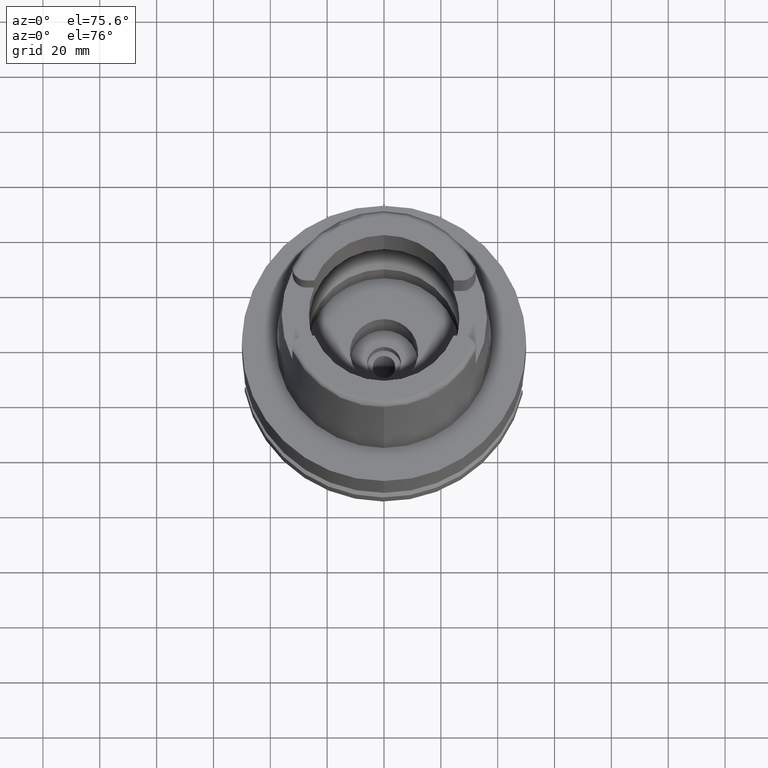
[diagram: clean part render]
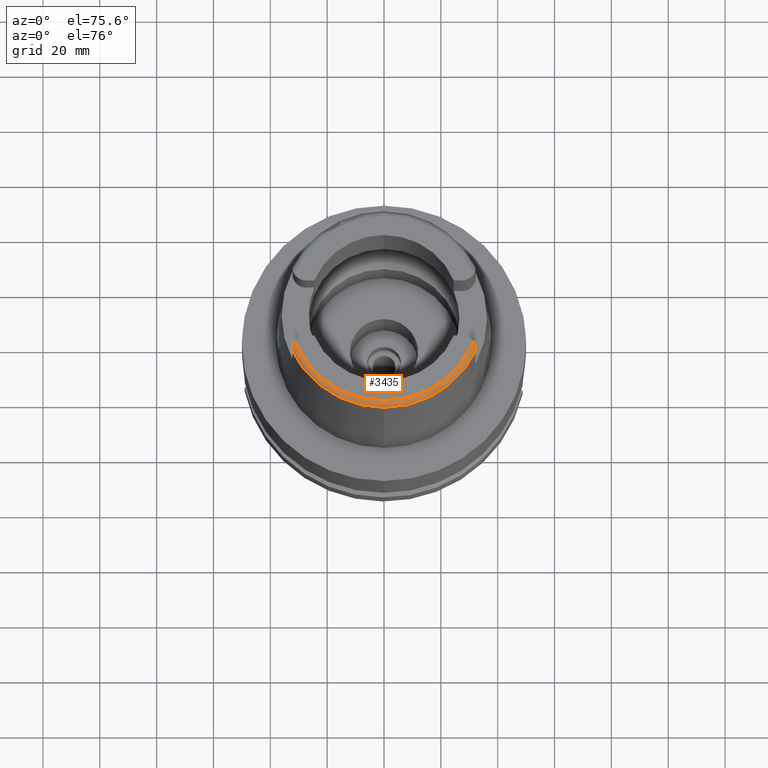
[diagram: same view with one face highlighted and labeled with its STEP entity id]
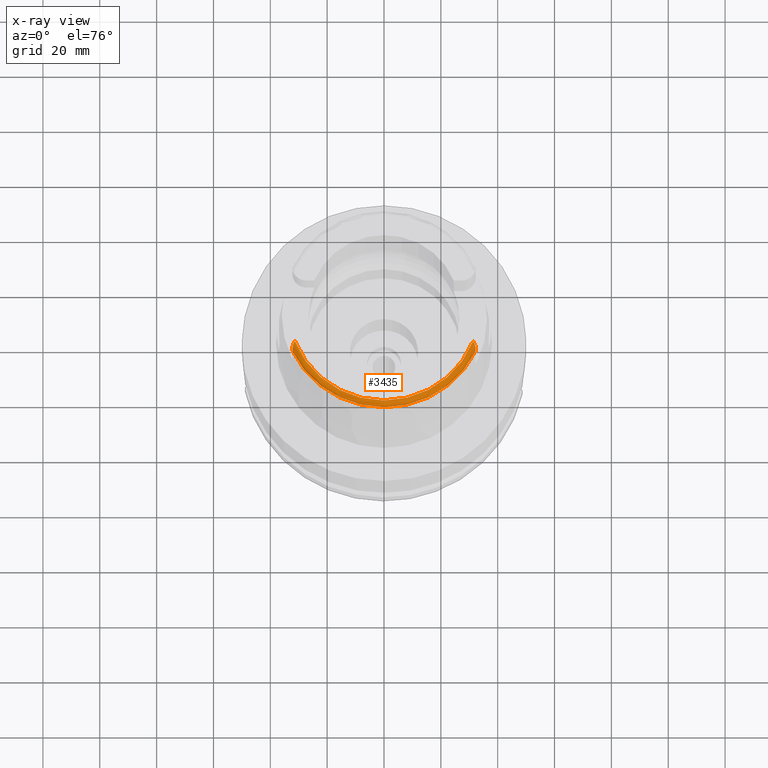
[diagram: x-ray of the same camera — body ghosted, the highlighted face saturated]
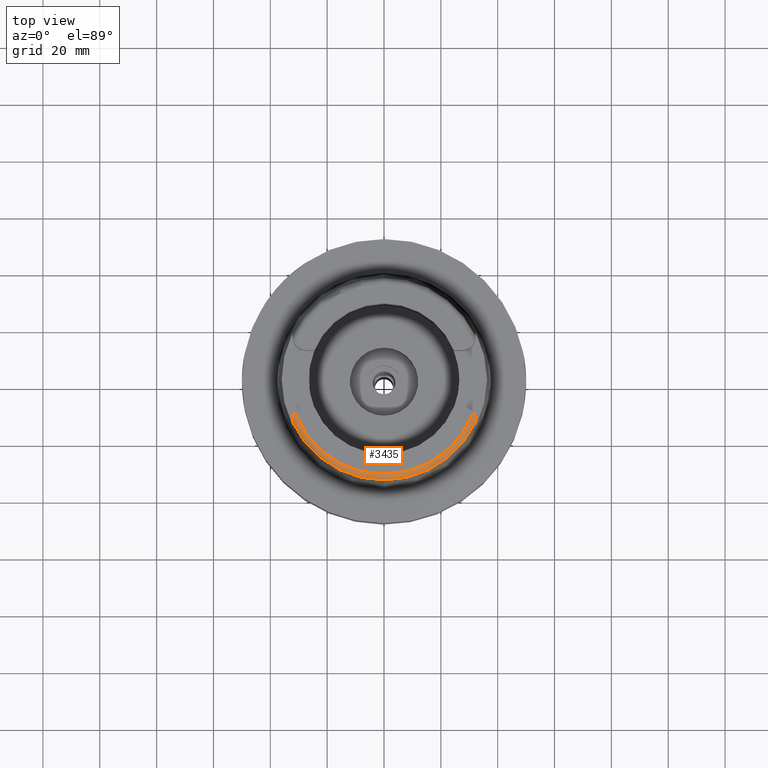
[diagram: same view with one face highlighted and labeled with its STEP entity id]
A machine part, auxiliary view. The second image highlights one B-rep face of the part: STEP entity #3435.
The next image is the same camera in x-ray: the body ghosted, the highlighted face saturated — about 0% of this face is hidden behind the body in this view.
A second angle (top view) of the same face is appended — the face is thin or edge-on in the first view.
In plain terms, the highlighted toroidal blend (fillet) surface has major radius 33.5974 mm and minor (blend) radius 2 mm.
Its self-contained STEP definition (entity closure, byte-faithful):
#33 = DIRECTION ( 'NONE',  ( 0.0000000000000000000, 0.0000000000000000000, -1.000000000000000000 ) ) ;
#172 = VERTEX_POINT ( 'NONE', #4469 ) ;
#177 = CARTESIAN_POINT ( 'NONE',  ( 32.14610317425776032, -13.87985422241613165, 49.41537686676068120 ) ) ;
#258 = CARTESIAN_POINT ( 'NONE',  ( -32.03371708158881148, -13.45243536510992577, 49.63932531624906375 ) ) ;
#266 = CARTESIAN_POINT ( 'NONE',  ( 32.21870237745215348, -14.33756778917065766, 49.10484835802201076 ) ) ;
#285 = CARTESIAN_POINT ( 'NONE',  ( -32.24268959277559787, -14.61955383698909650, 48.86302905688015841 ) ) ;
#349 = CARTESIAN_POINT ( 'NONE',  ( 31.35385269249000473, -12.07161079256999869, 50.00000000000000000 ) ) ;
#673 = CARTESIAN_POINT ( 'NONE',  ( 31.96671511648073505, -13.25139699175301189, 49.72800424400512753 ) ) ;
#736 = CARTESIAN_POINT ( 'NONE',  ( 32.11175532502635832, -13.73655971093185890, 49.49466299999382812 ) ) ;
#746 = CIRCLE ( 'NONE', #837, 35.59494289391000166 ) ;
#760 = CARTESIAN_POINT ( 'NONE',  ( -32.23698933338838657, -14.53315827437096175, 48.94271495172433362 ) ) ;
#787 = CARTESIAN_POINT ( 'NONE',  ( -32.15038882765753669, -13.90855415371579973, 49.39613752943051139 ) ) ;
#800 = EDGE_CURVE ( 'NONE', #3783, #1048, #1137, .T. ) ;
#820 = VERTEX_POINT ( 'NONE', #3855 ) ;
#837 = AXIS2_PLACEMENT_3D ( 'NONE', #898, #5739, #3323 ) ;
#856 = CARTESIAN_POINT ( 'NONE',  ( -32.24470985306119530, -14.65975393674544414, 48.82325495386183434 ) ) ;
#898 = CARTESIAN_POINT ( 'NONE',  ( 0.0000000000000000000, 0.0000000000000000000, 48.09987853799000135 ) ) ;
#987 = CARTESIAN_POINT ( 'NONE',  ( 32.25000000000000000, -15.04642711843376723, 48.25215134090561975 ) ) ;
#1048 = VERTEX_POINT ( 'NONE', #5459 ) ;
#1137 = CIRCLE ( 'NONE', #2623, 35.59494289391000166 ) ;
#1177 = ORIENTED_EDGE ( 'NONE', *, *, #3358, .F. ) ;
#1200 = CARTESIAN_POINT ( 'NONE',  ( -32.23855298297688421, -14.55525666458529166, 48.92278200394598997 ) ) ;
#1230 = CARTESIAN_POINT ( 'NONE',  ( -32.12310698791974062, -13.78427229960854206, 49.46815977806798514 ) ) ;
#1320 = ORIENTED_EDGE ( 'NONE', *, *, #4019, .F. ) ;
#1395 = DIRECTION ( 'NONE',  ( 0.0000000000000000000, -1.000000000000000000, 0.0000000000000000000 ) ) ;
#1405 = VERTEX_POINT ( 'NONE', #2618 ) ;
#1471 = DIRECTION ( 'NONE',  ( 0.0000000000000000000, 0.0000000000000000000, 1.000000000000000000 ) ) ;
#1699 = CARTESIAN_POINT ( 'NONE',  ( -32.01663586166080222, -13.39884982182910278, 49.66381532510670382 ) ) ;
#1785 = CARTESIAN_POINT ( 'NONE',  ( -32.23343763414511187, -14.48763751759479490, 48.98261144479383944 ) ) ;
#1922 = CARTESIAN_POINT ( 'NONE',  ( 0.0000000000000000000, 0.0000000000000000000, 48.09987853799000135 ) ) ;
#1961 = DIRECTION ( 'NONE',  ( 0.0000000000000000000, 0.0000000000000000000, -1.000000000000000000 ) ) ;
#1965 = CARTESIAN_POINT ( 'NONE',  ( 32.25000000000000000, -14.98829434827043272, 48.40080381564561662 ) ) ;
#2003 = CARTESIAN_POINT ( 'NONE',  ( 0.0000000000000000000, 0.0000000000000000000, 48.00000000000000000 ) ) ;
#2020 = CARTESIAN_POINT ( 'NONE',  ( 32.25000552016999222, -15.06439831049000055, 48.10004151400000438 ) ) ;
#2113 = CARTESIAN_POINT ( 'NONE',  ( 31.84889022511243439, -12.95082494414624108, 49.84110235372610731 ) ) ;
#2137 = CARTESIAN_POINT ( 'NONE',  ( -32.14079829604171579, -13.86254764680484008, 49.42348671741006427 ) ) ;
#2180 = CARTESIAN_POINT ( 'NONE',  ( 32.24706215165778644, -14.63331221551902139, 48.86215700780236659 ) ) ;
#2198 = CARTESIAN_POINT ( 'NONE',  ( -31.68264163235910047, -12.58363611097901114, 49.95463711956471542 ) ) ;
#2354 = CARTESIAN_POINT ( 'NONE',  ( -32.24999491821000674, -15.06448480891999964, 48.09973261705999903 ) ) ;
#2425 = VERTEX_POINT ( 'NONE', #349 ) ;
#2473 = DIRECTION ( 'NONE',  ( -0.0004184165975219878483, -0.9999999124637716230, 0.0000000000000000000 ) ) ;
#2565 = FACE_OUTER_BOUND ( 'NONE', #5345, .T. ) ;
#2618 = CARTESIAN_POINT ( 'NONE',  ( 32.25000000000000000, -14.89000000000000057, 48.54599893821999501 ) ) ;
#2623 = AXIS2_PLACEMENT_3D ( 'NONE', #1922, #1961, #1395 ) ;
#2641 = CARTESIAN_POINT ( 'NONE',  ( 32.20542540692940037, -14.22966627373202542, 49.18586996303810821 ) ) ;
#2660 = CARTESIAN_POINT ( 'NONE',  ( -31.94108013937859525, -13.17363191879881867, 49.76261469505764978 ) ) ;
#2688 = CARTESIAN_POINT ( 'NONE',  ( -32.11978351870300941, -13.77005375147366451, 49.47613186544180763 ) ) ;
#2755 = CARTESIAN_POINT ( 'NONE',  ( -32.16844265705450567, -13.99940399838899907, 49.34079756337163047 ) ) ;
#2782 = B_SPLINE_CURVE_WITH_KNOTS ( 'NONE', 3,
 ( #2354, #5626, #3250, #5213 ),
 .UNSPECIFIED., .F., .F.,
 ( 4, 4 ),
 ( 0.0000000000000000000, 1.000000000000000000 ),
 .UNSPECIFIED. ) ;
#2861 = B_SPLINE_CURVE_WITH_KNOTS ( 'NONE', 3,
 ( #5203, #1965, #987, #2020 ),
 .UNSPECIFIED., .F., .F.,
 ( 4, 4 ),
 ( 0.0000000000000000000, 1.000000000000000000 ),
 .UNSPECIFIED. ) ;
#2987 = CARTESIAN_POINT ( 'NONE',  ( 32.25000000000000000, -14.78330813591049164, 48.70359841934597966 ) ) ;
#3074 = CARTESIAN_POINT ( 'NONE',  ( 31.89599084158538389, -13.06210101560527548, 49.80307078958208677 ) ) ;
#3090 = CARTESIAN_POINT ( 'NONE',  ( -32.09883640354727419, -13.68265768955951955, 49.52449476721399435 ) ) ;
#3102 = CARTESIAN_POINT ( 'NONE',  ( 32.08471361768027919, -13.62976688719491136, 49.55187484112376239 ) ) ;
#3123 = CARTESIAN_POINT ( 'NONE',  ( -32.00500484644039290, -13.36308030394345359, 49.67990980628329822 ) ) ;
#3136 = AXIS2_PLACEMENT_3D ( 'NONE', #5281, #33, #3755 ) ;
#3187 = CARTESIAN_POINT ( 'NONE',  ( -32.13030730052887662, -13.81569362351521590, 49.45035471281480710 ) ) ;
#3215 = CARTESIAN_POINT ( 'NONE',  ( -32.21984169462297842, -14.33883225201004308, 49.10660589714066759 ) ) ;
#3239 = AXIS2_PLACEMENT_3D ( 'NONE', #2003, #1471, #2473 ) ;
#3250 = CARTESIAN_POINT ( 'NONE',  ( -32.25000000000000000, -14.98833473157426255, 48.40074416356956277 ) ) ;
#3323 = DIRECTION ( 'NONE',  ( 0.9060280460804950309, -0.4232176505245974218, 0.0000000000000000000 ) ) ;
#3358 = EDGE_CURVE ( 'NONE', #1048, #5017, #2782, .T. ) ;
#3435 = ADVANCED_FACE ( 'NONE', ( #2565 ), #3547, .T. ) ;
#3453 = CARTESIAN_POINT ( 'NONE',  ( 31.68320087010997810, -12.58478439452329845, 49.95433150338072181 ) ) ;
#3547 = TOROIDAL_SURFACE ( 'NONE', #3239, 33.59743838135999994, 2.000000000000000000 ) ;
#3576 = CARTESIAN_POINT ( 'NONE',  ( 31.94621796354172361, -13.19427246604458936, 49.75159069773069120 ) ) ;
#3579 = CARTESIAN_POINT ( 'NONE',  ( 1.065814103639999922E-14, -35.59494289391000166, 48.09987853799000135 ) ) ;
#3655 = CARTESIAN_POINT ( 'NONE',  ( -32.23156497669928910, -14.46546157516217690, 49.00154081838045528 ) ) ;
#3679 = CARTESIAN_POINT ( 'NONE',  ( -31.99949780952958278, -13.34644538154071469, 49.68728616353084249 ) ) ;
#3755 = DIRECTION ( 'NONE',  ( 0.9332215253017949186, -0.3593015233941980191, 0.0000000000000000000 ) ) ;
#3783 = VERTEX_POINT ( 'NONE', #3579 ) ;
#3823 = ORIENTED_EDGE ( 'NONE', *, *, #5473, .F. ) ;
#3855 = CARTESIAN_POINT ( 'NONE',  ( -31.35385269249000473, -12.07161079256999869, 50.00000000000000000 ) ) ;
#3983 = CARTESIAN_POINT ( 'NONE',  ( 32.16982095416102538, -14.00136223075325148, 49.34145702481995954 ) ) ;
#4017 = CARTESIAN_POINT ( 'NONE',  ( 32.01739599369619782, -13.39942740398753074, 49.66419375882557574 ) ) ;
#4019 = EDGE_CURVE ( 'NONE', #172, #3783, #746, .T. ) ;
#4103 = CARTESIAN_POINT ( 'NONE',  ( -32.20663923995435596, -14.23058043373984916, 49.18723614628340357 ) ) ;
#4383 = EDGE_CURVE ( 'NONE', #2425, #820, #4540, .T. ) ;
#4469 = CARTESIAN_POINT ( 'NONE',  ( 32.25000552016999222, -15.06439831049000055, 48.10004151400000438 ) ) ;
#4490 = CARTESIAN_POINT ( 'NONE',  ( 31.98719758479897379, -13.31004985060777202, 49.70316487290664043 ) ) ;
#4509 = ORIENTED_EDGE ( 'NONE', *, *, #4383, .T. ) ;
#4536 = ORIENTED_EDGE ( 'NONE', *, *, #4814, .F. ) ;
#4540 = CIRCLE ( 'NONE', #3136, 33.59743838135999994 ) ;
#4543 = CARTESIAN_POINT ( 'NONE',  ( -32.17897606492392271, -14.05841865554414660, 49.30304879919935956 ) ) ;
#4556 = CARTESIAN_POINT ( 'NONE',  ( 32.19751138235609744, -14.17381327682231884, 49.22541234330859083 ) ) ;
#4576 = CARTESIAN_POINT ( 'NONE',  ( -31.88197110250233379, -13.02386366263928252, 49.81854847825885457 ) ) ;
#4666 = CARTESIAN_POINT ( 'NONE',  ( -32.24915796434953563, -14.77229204092531845, 48.70411622988373779 ) ) ;
#4814 = EDGE_CURVE ( 'NONE', #5017, #820, #5688, .T. ) ;
#4838 = CARTESIAN_POINT ( 'NONE',  ( -32.25000000000000000, -14.89000000000000057, 48.54599893821999501 ) ) ;
#4894 = CARTESIAN_POINT ( 'NONE',  ( 32.25000000000000000, -14.89000000000000057, 48.54599893821999501 ) ) ;
#4924 = CARTESIAN_POINT ( 'NONE',  ( 31.98014945996594705, -13.28958391738456157, 49.71194137325075957 ) ) ;
#4959 = CARTESIAN_POINT ( 'NONE',  ( 31.35385269249000473, -12.07161079256999869, 50.00000000000000000 ) ) ;
#4984 = CARTESIAN_POINT ( 'NONE',  ( 31.52591860102923960, -12.31482958975441377, 50.00000000000000000 ) ) ;
#5003 = CARTESIAN_POINT ( 'NONE',  ( -32.07104929441193519, -13.57694912885029837, 49.57974395259868317 ) ) ;
#5016 = CARTESIAN_POINT ( 'NONE',  ( 32.10708762006205319, -13.71751219968218471, 49.50506756307361655 ) ) ;
#5017 = VERTEX_POINT ( 'NONE', #4838 ) ;
#5065 = CARTESIAN_POINT ( 'NONE',  ( -32.25000000000000000, -14.89000000000000057, 48.54599893821999501 ) ) ;
#5203 = CARTESIAN_POINT ( 'NONE',  ( 32.25000000000000000, -14.89000000000000057, 48.54599893821999501 ) ) ;
#5213 = CARTESIAN_POINT ( 'NONE',  ( -32.25000000000000000, -14.89000000000000057, 48.54599893821999501 ) ) ;
#5281 = CARTESIAN_POINT ( 'NONE',  ( 0.0000000000000000000, 0.0000000000000000000, 50.00000000000000000 ) ) ;
#5345 = EDGE_LOOP ( 'NONE', ( #5566, #1320, #3823, #5646, #4509, #4536, #1177 ) ) ;
#5363 = CARTESIAN_POINT ( 'NONE',  ( 32.21559581800462979, -14.31090929679165136, 49.12526516298228074 ) ) ;
#5393 = CARTESIAN_POINT ( 'NONE',  ( 32.05071100581518095, -13.50623399469648511, 49.61462143781992040 ) ) ;
#5459 = CARTESIAN_POINT ( 'NONE',  ( -32.24999491821000674, -15.06448480891999964, 48.09973261705999903 ) ) ;
#5473 = EDGE_CURVE ( 'NONE', #1405, #172, #2861, .T. ) ;
#5478 = CARTESIAN_POINT ( 'NONE',  ( -32.25000000000000000, -14.83656164973345071, 48.62493519400067044 ) ) ;
#5564 = CARTESIAN_POINT ( 'NONE',  ( -31.52580085512322938, -12.31466315342852091, 49.99999999999999289 ) ) ;
#5566 = ORIENTED_EDGE ( 'NONE', *, *, #800, .F. ) ;
#5593 = CARTESIAN_POINT ( 'NONE',  ( -31.35385269249000473, -12.07161079256999869, 50.00000000000000000 ) ) ;
#5611 = B_SPLINE_CURVE_WITH_KNOTS ( 'NONE', 3,
 ( #4959, #4984, #3453, #2113, #3074, #3576, #673, #4924, #4490, #4017, #5393, #3102, #5924, #5016, #736, #177, #3983, #4556, #2641, #5363, #266, #5892, #5865, #2180, #2987, #4894 ),
 .UNSPECIFIED., .F., .F.,
 ( 4, 2, 1, 1, 2, 2, 1, 1, 2, 2, 2, 2, 2, 2, 4 ),
 ( 0.0000000000000000000, 0.2499999999999880096, 0.3124999999999844569, 0.3437499999999835132, 0.3593749999999844569, 0.3749999999999854561, 0.4374999999999910627, 0.4687499999999931721, 0.4843749999999936162, 0.4999999999999941158, 0.6249999999999962252, 0.6874999999999972244, 0.7187499999999967804, 0.7499999999999964473, 1.000000000000000000 ),
 .UNSPECIFIED. ) ;
#5626 = CARTESIAN_POINT ( 'NONE',  ( -32.25000000000000000, -15.04649633454759616, 48.25198872318289744 ) ) ;
#5646 = ORIENTED_EDGE ( 'NONE', *, *, #5691, .F. ) ;
#5688 = B_SPLINE_CURVE_WITH_KNOTS ( 'NONE', 3,
 ( #5065, #5478, #4666, #856, #285, #1200, #760, #1785, #3655, #3215, #4103, #4543, #2755, #787, #2137, #3187, #1230, #2688, #3090, #5003, #258, #1699, #3123, #3679, #2660, #4576, #2198, #5564, #5593 ),
 .UNSPECIFIED., .F., .F.,
 ( 4, 2, 2, 2, 2, 2, 2, 1, 2, 2, 1, 1, 2, 2, 2, 4 ),
 ( 0.0000000000000000000, 0.1249999999999963363, 0.1874999999999946154, 0.2187499999999964473, 0.2499999999999982792, 0.3750000000000026645, 0.4375000000000069389, 0.4687500000000106026, 0.4843750000000098255, 0.5000000000000089928, 0.5625000000000102141, 0.5937500000000114353, 0.6093750000000118794, 0.6250000000000123235, 0.7500000000000091038, 1.000000000000000000 ),
 .UNSPECIFIED. ) ;
#5691 = EDGE_CURVE ( 'NONE', #2425, #1405, #5611, .T. ) ;
#5739 = DIRECTION ( 'NONE',  ( 0.0000000000000000000, 0.0000000000000000000, -1.000000000000000000 ) ) ;
#5865 = CARTESIAN_POINT ( 'NONE',  ( 32.22710029277470056, -14.41718040588237315, 49.04161441556247780 ) ) ;
#5892 = CARTESIAN_POINT ( 'NONE',  ( 32.22439217204245665, -14.39002726805879995, 49.06358433821804965 ) ) ;
#5924 = CARTESIAN_POINT ( 'NONE',  ( 32.09827145440797835, -13.68245049150359272, 49.52393082349907871 ) ) ;